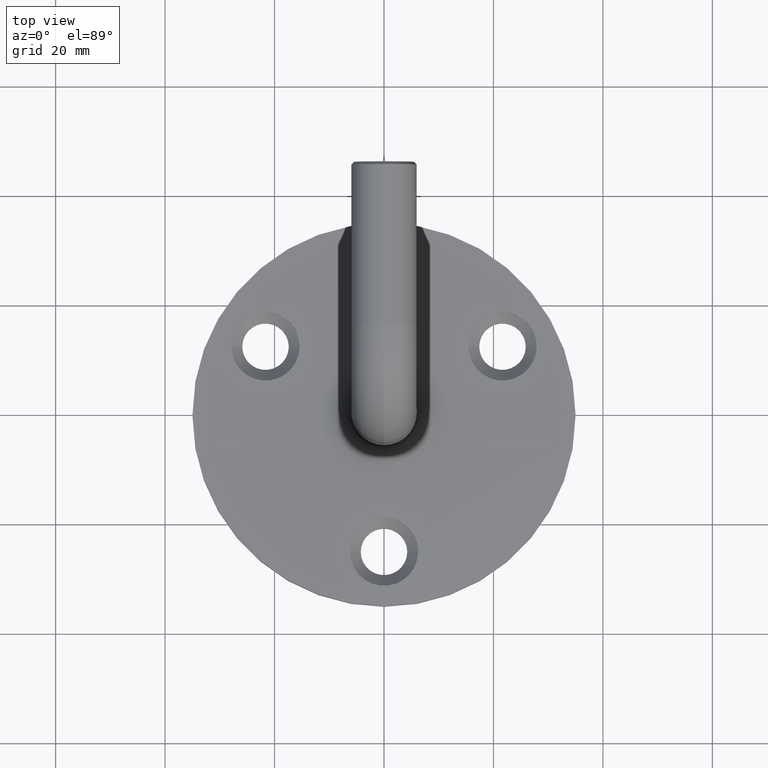
[diagram: clean part render]
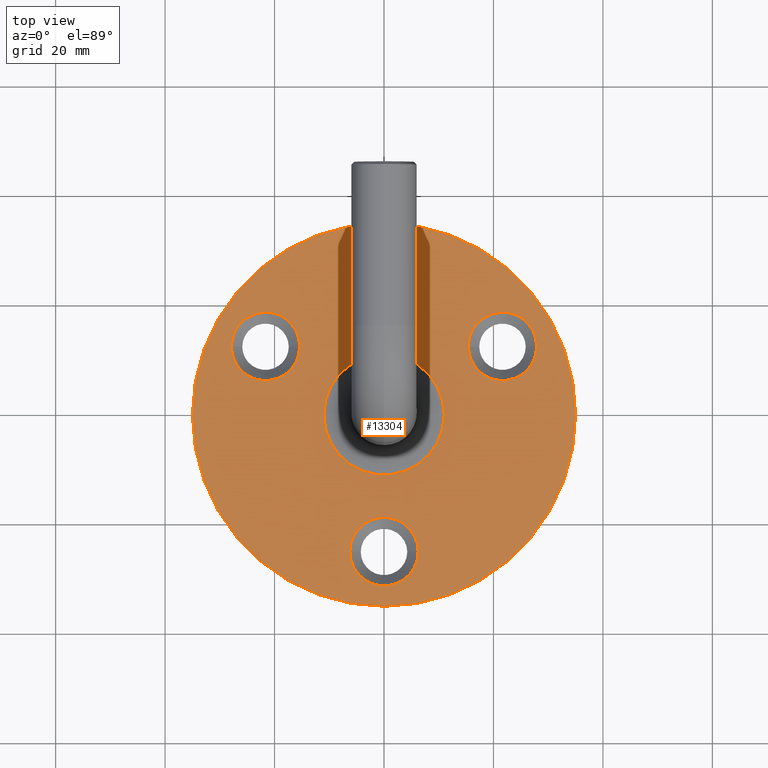
[diagram: same view with one face highlighted and labeled with its STEP entity id]
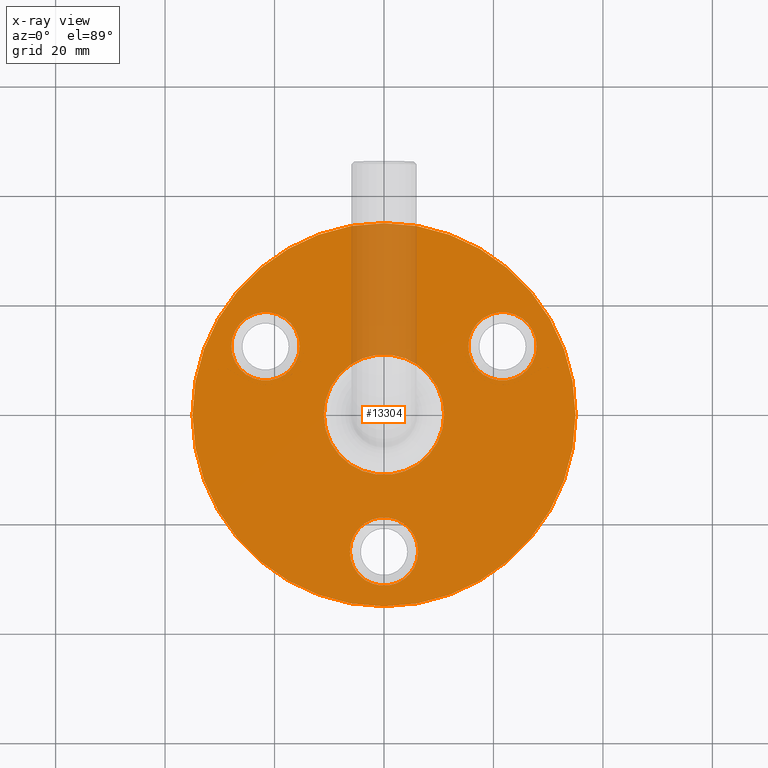
[diagram: x-ray of the same camera — body ghosted, the highlighted face saturated]
A machine part, top view. The second image highlights one B-rep face of the part: STEP entity #13304.
The next image is the same camera in x-ray: the body ghosted, the highlighted face saturated — about 9% of this face is hidden behind the body in this view.
In plain terms, the highlighted planar face has unit normal (0, 0, 1).
Its self-contained STEP definition (entity closure, byte-faithful):
#229 = CARTESIAN_POINT ( 'NONE',  ( 35.00000000000000000, 4.286263797015736496E-15, 5.000000000000000000 ) ) ;
#367 = AXIS2_PLACEMENT_3D ( 'NONE', #11142, #7466, #4946 ) ;
#485 = CARTESIAN_POINT ( 'NONE',  ( 11.00000000000000178, -1.156482317317871133E-15, 5.000000000000000888 ) ) ;
#523 = AXIS2_PLACEMENT_3D ( 'NONE', #4384, #5720, #6822 ) ;
#648 = EDGE_LOOP ( 'NONE', ( #4378, #8632 ) ) ;
#657 = AXIS2_PLACEMENT_3D ( 'NONE', #9400, #8115, #2070 ) ;
#734 = DIRECTION ( 'NONE',  ( 1.000000000000000000, 0.000000000000000000, 0.000000000000000000 ) ) ;
#881 = DIRECTION ( 'NONE',  ( 1.000000000000000000, 0.000000000000000000, 0.000000000000000000 ) ) ;
#1076 = VERTEX_POINT ( 'NONE', #8046 ) ;
#1129 = DIRECTION ( 'NONE',  ( 0.000000000000000000, 0.000000000000000000, 1.000000000000000000 ) ) ;
#1204 = FACE_BOUND ( 'NONE', #6026, .T. ) ;
#1248 = VERTEX_POINT ( 'NONE', #13426 ) ;
#1759 = FACE_BOUND ( 'NONE', #648, .T. ) ;
#1993 = EDGE_LOOP ( 'NONE', ( #14636, #13374 ) ) ;
#2038 = ORIENTED_EDGE ( 'NONE', *, *, #6122, .F. ) ;
#2070 = DIRECTION ( 'NONE',  ( 1.000000000000000000, 0.000000000000000000, 0.000000000000000000 ) ) ;
#2193 = CIRCLE ( 'NONE', #13273, 6.250000000000001776 ) ;
#2199 = VERTEX_POINT ( 'NONE', #11331 ) ;
#2335 = DIRECTION ( 'NONE',  ( 1.000000000000000000, 0.000000000000000000, 0.000000000000000000 ) ) ;
#2407 = CARTESIAN_POINT ( 'NONE',  ( -35.00000000000000000, 0.000000000000000000, 5.000000000000000000 ) ) ;
#2437 = AXIS2_PLACEMENT_3D ( 'NONE', #10325, #11614, #734 ) ;
#2652 = ORIENTED_EDGE ( 'NONE', *, *, #11523, .F. ) ;
#2746 = DIRECTION ( 'NONE',  ( 1.000000000000000000, 0.000000000000000000, 0.000000000000000000 ) ) ;
#2757 = DIRECTION ( 'NONE',  ( 1.000000000000000000, 0.000000000000000000, 0.000000000000000000 ) ) ;
#2854 = CIRCLE ( 'NONE', #11220, 11.00000000000000178 ) ;
#3356 = ORIENTED_EDGE ( 'NONE', *, *, #15521, .F. ) ;
#3538 = CIRCLE ( 'NONE', #12675, 6.250000000000001776 ) ;
#4378 = ORIENTED_EDGE ( 'NONE', *, *, #7797, .T. ) ;
#4384 = CARTESIAN_POINT ( 'NONE',  ( 0.000000000000000000, -1.156482317317871133E-15, 5.000000000000000000 ) ) ;
#4591 = DIRECTION ( 'NONE',  ( 1.000000000000000000, 0.000000000000000000, 0.000000000000000000 ) ) ;
#4592 = VERTEX_POINT ( 'NONE', #13704 ) ;
#4623 = EDGE_LOOP ( 'NONE', ( #2652, #5829 ) ) ;
#4708 = CIRCLE ( 'NONE', #5503, 6.250000000000001776 ) ;
#4899 = CARTESIAN_POINT ( 'NONE',  ( -21.65063509461100111, 12.49999999999994138, 5.000000000000000000 ) ) ;
#4939 = DIRECTION ( 'NONE',  ( 1.000000000000000000, 0.000000000000000000, -0.000000000000000000 ) ) ;
#4946 = DIRECTION ( 'NONE',  ( 1.000000000000000000, 0.000000000000000000, 0.000000000000000000 ) ) ;
#4985 = EDGE_CURVE ( 'NONE', #1248, #11645, #2854, .T. ) ;
#5104 = DIRECTION ( 'NONE',  ( -0.000000000000000000, -0.000000000000000000, -1.000000000000000000 ) ) ;
#5212 = AXIS2_PLACEMENT_3D ( 'NONE', #7019, #8689, #4591 ) ;
#5503 = AXIS2_PLACEMENT_3D ( 'NONE', #5693, #8125, #881 ) ;
#5531 = CIRCLE ( 'NONE', #657, 35.00000000000000000 ) ;
#5560 = FACE_BOUND ( 'NONE', #4623, .T. ) ;
#5693 = CARTESIAN_POINT ( 'NONE',  ( -21.65063509461100111, 12.49999999999994138, 5.000000000000000000 ) ) ;
#5720 = DIRECTION ( 'NONE',  ( -0.000000000000000000, -0.000000000000000000, -1.000000000000000000 ) ) ;
#5829 = ORIENTED_EDGE ( 'NONE', *, *, #8659, .F. ) ;
#5992 = DIRECTION ( 'NONE',  ( 0.000000000000000000, 0.000000000000000000, 1.000000000000000000 ) ) ;
#6026 = EDGE_LOOP ( 'NONE', ( #2038, #3356 ) ) ;
#6122 = EDGE_CURVE ( 'NONE', #11685, #2199, #10999, .T. ) ;
#6206 = CARTESIAN_POINT ( 'NONE',  ( -6.250000000000000000, -25.00000000000000000, 5.000000000000000000 ) ) ;
#6822 = DIRECTION ( 'NONE',  ( 1.000000000000000000, 0.000000000000000000, 0.000000000000000000 ) ) ;
#7019 = CARTESIAN_POINT ( 'NONE',  ( 0.000000000000000000, -25.00000000000000000, 5.000000000000000000 ) ) ;
#7090 = DIRECTION ( 'NONE',  ( 0.000000000000000000, 0.000000000000000000, 1.000000000000000000 ) ) ;
#7374 = EDGE_CURVE ( 'NONE', #13906, #13386, #9252, .T. ) ;
#7466 = DIRECTION ( 'NONE',  ( 0.000000000000000000, 0.000000000000000000, 1.000000000000000000 ) ) ;
#7797 = EDGE_CURVE ( 'NONE', #11645, #1248, #11552, .T. ) ;
#7905 = EDGE_CURVE ( 'NONE', #12909, #8340, #8504, .T. ) ;
#8046 = CARTESIAN_POINT ( 'NONE',  ( -15.40063509461099933, 12.49999999999994138, 5.000000000000000000 ) ) ;
#8115 = DIRECTION ( 'NONE',  ( 0.000000000000000000, 0.000000000000000000, 1.000000000000000000 ) ) ;
#8125 = DIRECTION ( 'NONE',  ( 0.000000000000000000, 0.000000000000000000, 1.000000000000000000 ) ) ;
#8340 = VERTEX_POINT ( 'NONE', #229 ) ;
#8504 = CIRCLE ( 'NONE', #8862, 35.00000000000000000 ) ;
#8632 = ORIENTED_EDGE ( 'NONE', *, *, #4985, .T. ) ;
#8659 = EDGE_CURVE ( 'NONE', #4592, #1076, #4708, .T. ) ;
#8689 = DIRECTION ( 'NONE',  ( 0.000000000000000000, 0.000000000000000000, 1.000000000000000000 ) ) ;
#8862 = AXIS2_PLACEMENT_3D ( 'NONE', #14363, #7090, #14460 ) ;
#9126 = EDGE_CURVE ( 'NONE', #8340, #12909, #5531, .T. ) ;
#9252 = CIRCLE ( 'NONE', #2437, 6.250000000000000000 ) ;
#9400 = CARTESIAN_POINT ( 'NONE',  ( 0.000000000000000000, 0.000000000000000000, 5.000000000000000000 ) ) ;
#10019 = DIRECTION ( 'NONE',  ( 0.000000000000000000, 0.000000000000000000, 1.000000000000000000 ) ) ;
#10030 = CARTESIAN_POINT ( 'NONE',  ( 0.000000000000000000, -1.156482317317871133E-15, 5.000000000000000000 ) ) ;
#10325 = CARTESIAN_POINT ( 'NONE',  ( 0.000000000000000000, -25.00000000000000000, 5.000000000000000000 ) ) ;
#10999 = CIRCLE ( 'NONE', #367, 6.250000000000001776 ) ;
#11119 = AXIS2_PLACEMENT_3D ( 'NONE', #12232, #5992, #4939 ) ;
#11142 = CARTESIAN_POINT ( 'NONE',  ( 21.65063509461099045, 12.49999999999995737, 5.000000000000000000 ) ) ;
#11220 = AXIS2_PLACEMENT_3D ( 'NONE', #10030, #5104, #2757 ) ;
#11331 = CARTESIAN_POINT ( 'NONE',  ( 15.40063509461098867, 12.49999999999995737, 5.000000000000000000 ) ) ;
#11523 = EDGE_CURVE ( 'NONE', #1076, #4592, #3538, .T. ) ;
#11552 = CIRCLE ( 'NONE', #523, 11.00000000000000178 ) ;
#11614 = DIRECTION ( 'NONE',  ( 0.000000000000000000, 0.000000000000000000, 1.000000000000000000 ) ) ;
#11645 = VERTEX_POINT ( 'NONE', #485 ) ;
#11685 = VERTEX_POINT ( 'NONE', #15182 ) ;
#11957 = ORIENTED_EDGE ( 'NONE', *, *, #14224, .F. ) ;
#12070 = PLANE ( 'NONE',  #11119 ) ;
#12232 = CARTESIAN_POINT ( 'NONE',  ( 0.000000000000000000, 0.000000000000000000, 5.000000000000000000 ) ) ;
#12524 = CARTESIAN_POINT ( 'NONE',  ( 6.250000000000000000, -25.00000000000000000, 5.000000000000000000 ) ) ;
#12675 = AXIS2_PLACEMENT_3D ( 'NONE', #4899, #1129, #2335 ) ;
#12788 = FACE_OUTER_BOUND ( 'NONE', #1993, .T. ) ;
#12909 = VERTEX_POINT ( 'NONE', #2407 ) ;
#13273 = AXIS2_PLACEMENT_3D ( 'NONE', #13678, #10019, #2746 ) ;
#13304 = ADVANCED_FACE ( 'NONE', ( #1759, #5560, #1204, #15212, #12788 ), #12070, .T. ) ;
#13374 = ORIENTED_EDGE ( 'NONE', *, *, #9126, .T. ) ;
#13386 = VERTEX_POINT ( 'NONE', #6206 ) ;
#13426 = CARTESIAN_POINT ( 'NONE',  ( -11.00000000000000178, 1.906291617442173946E-16, 5.000000000000000888 ) ) ;
#13678 = CARTESIAN_POINT ( 'NONE',  ( 21.65063509461099045, 12.49999999999995737, 5.000000000000000000 ) ) ;
#13704 = CARTESIAN_POINT ( 'NONE',  ( -27.90063509461100466, 12.49999999999994138, 5.000000000000000000 ) ) ;
#13906 = VERTEX_POINT ( 'NONE', #12524 ) ;
#14224 = EDGE_CURVE ( 'NONE', #13386, #13906, #14686, .T. ) ;
#14361 = EDGE_LOOP ( 'NONE', ( #14476, #11957 ) ) ;
#14363 = CARTESIAN_POINT ( 'NONE',  ( 0.000000000000000000, 0.000000000000000000, 5.000000000000000000 ) ) ;
#14460 = DIRECTION ( 'NONE',  ( 1.000000000000000000, 0.000000000000000000, 0.000000000000000000 ) ) ;
#14476 = ORIENTED_EDGE ( 'NONE', *, *, #7374, .F. ) ;
#14636 = ORIENTED_EDGE ( 'NONE', *, *, #7905, .T. ) ;
#14686 = CIRCLE ( 'NONE', #5212, 6.250000000000000000 ) ;
#15182 = CARTESIAN_POINT ( 'NONE',  ( 27.90063509461099400, 12.49999999999995737, 5.000000000000000000 ) ) ;
#15212 = FACE_BOUND ( 'NONE', #14361, .T. ) ;
#15521 = EDGE_CURVE ( 'NONE', #2199, #11685, #2193, .T. ) ;